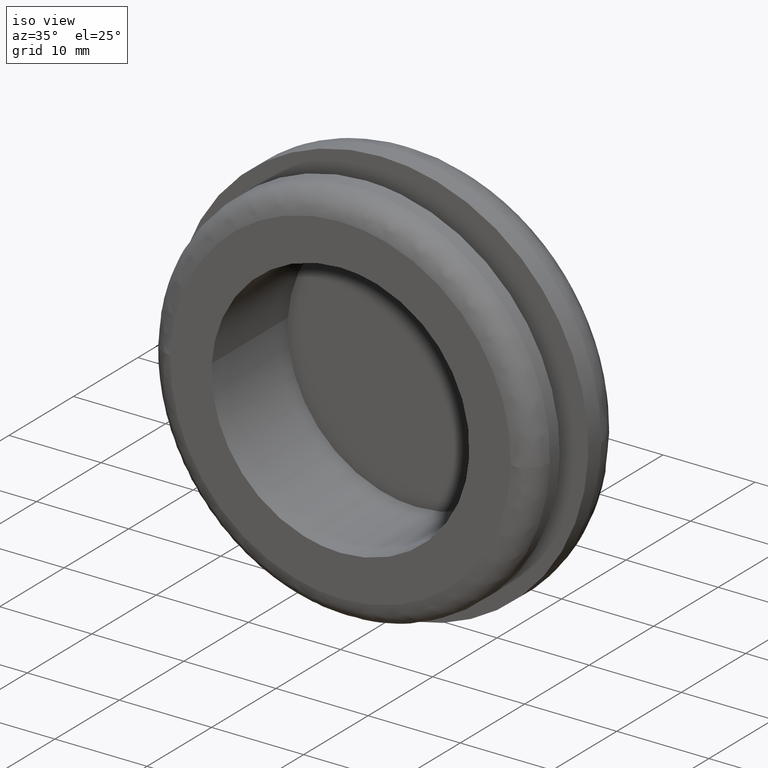
[diagram: clean part render]
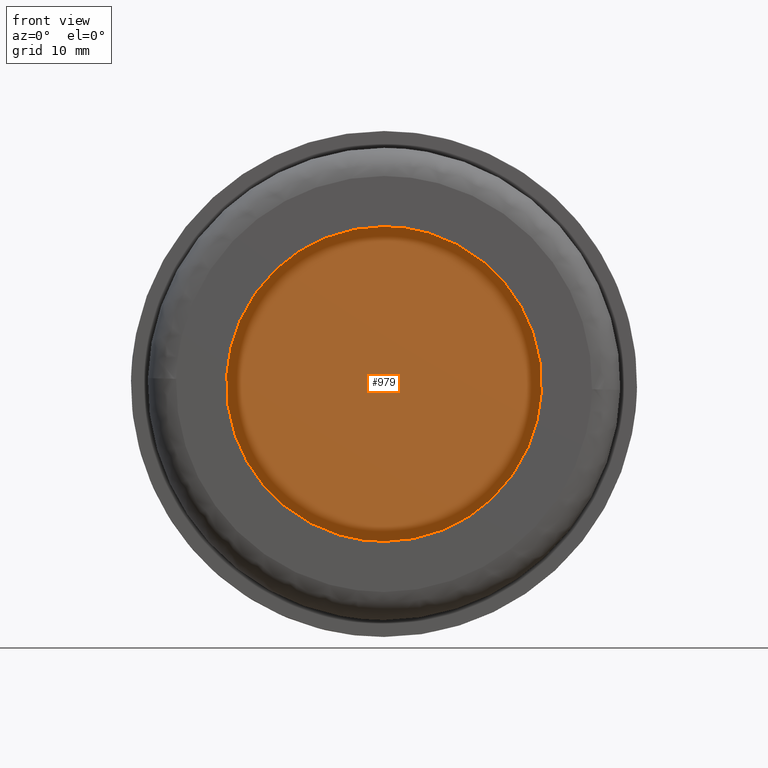
[diagram: tour spotlight — one face highlighted and labeled with its STEP entity id]
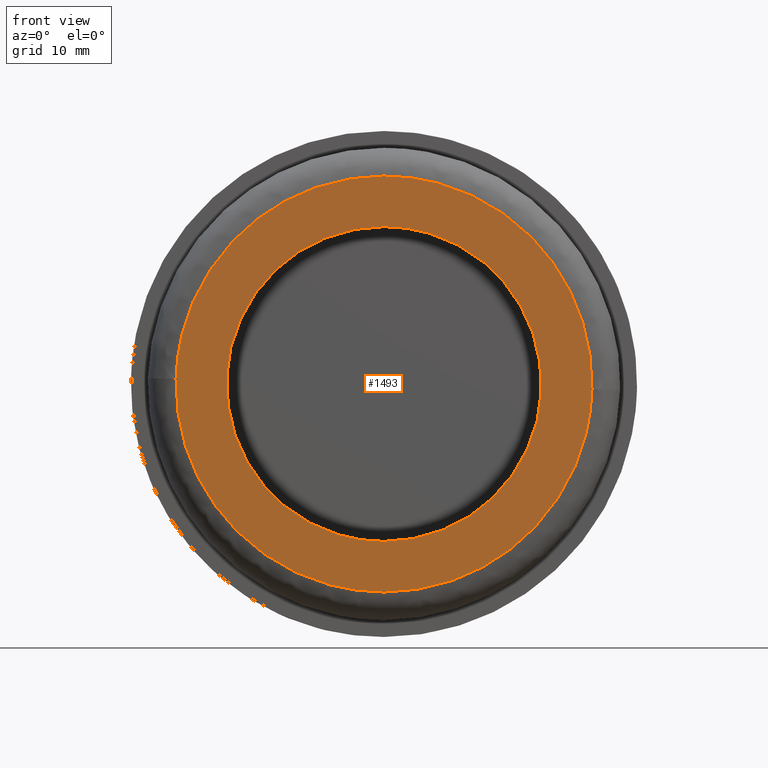
[diagram: tour spotlight — one face highlighted and labeled with its STEP entity id]
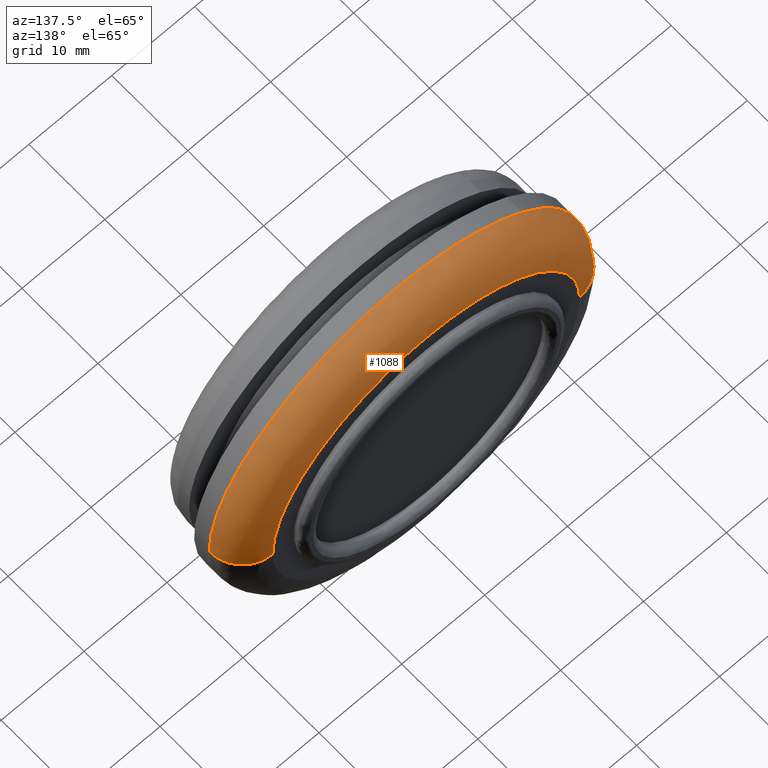
[diagram: tour spotlight — one face highlighted and labeled with its STEP entity id]
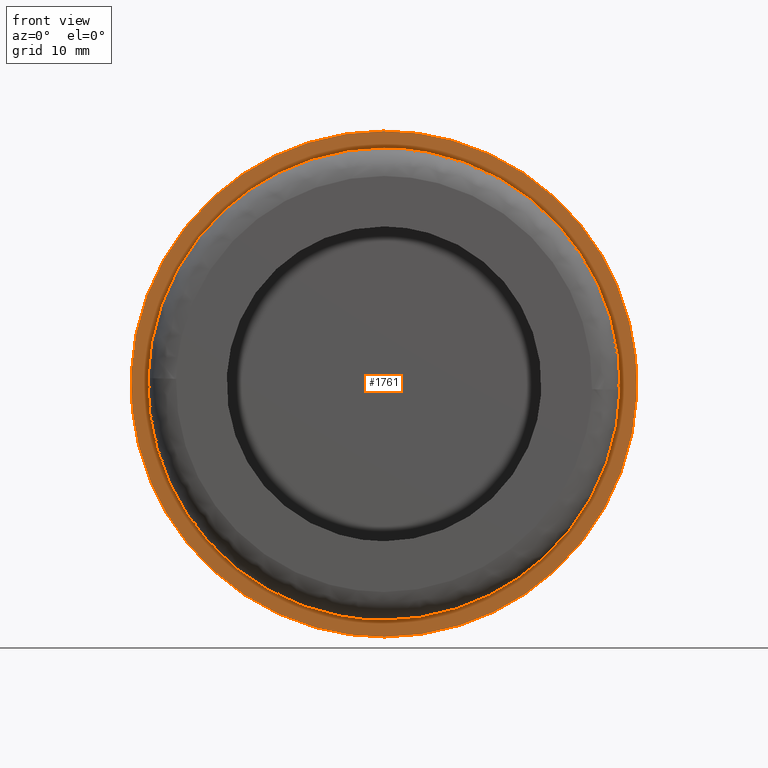
[diagram: tour spotlight — one face highlighted and labeled with its STEP entity id]
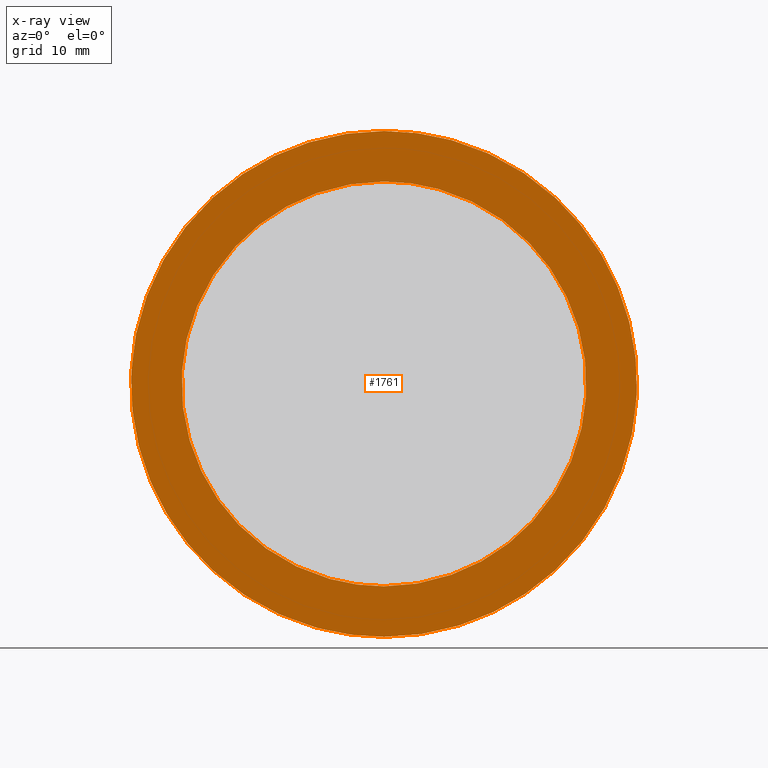
[diagram: x-ray of the same camera — body ghosted, this tour face saturated]
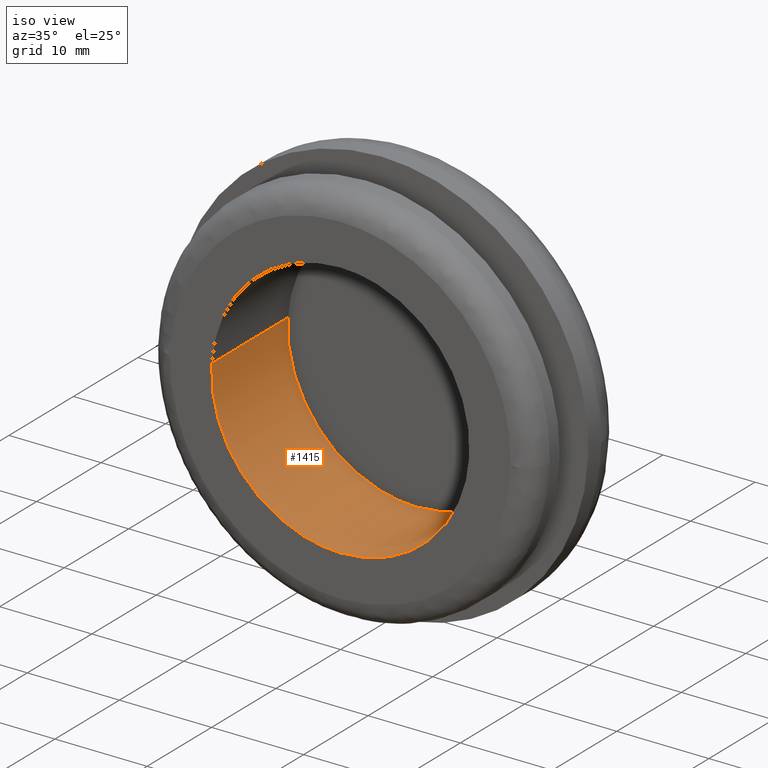
[diagram: tour spotlight — one face highlighted and labeled with its STEP entity id]
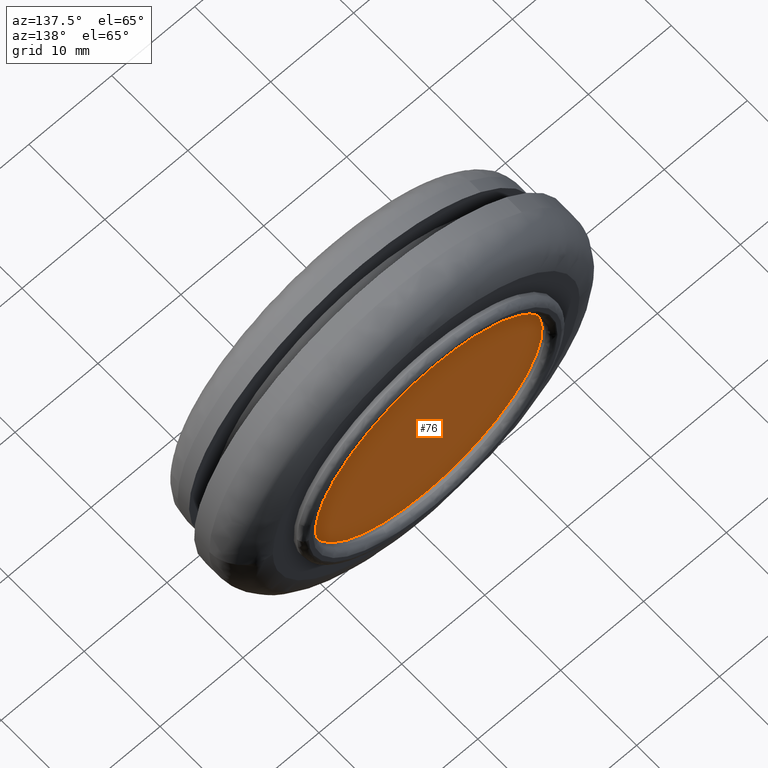
[diagram: tour spotlight — one face highlighted and labeled with its STEP entity id]
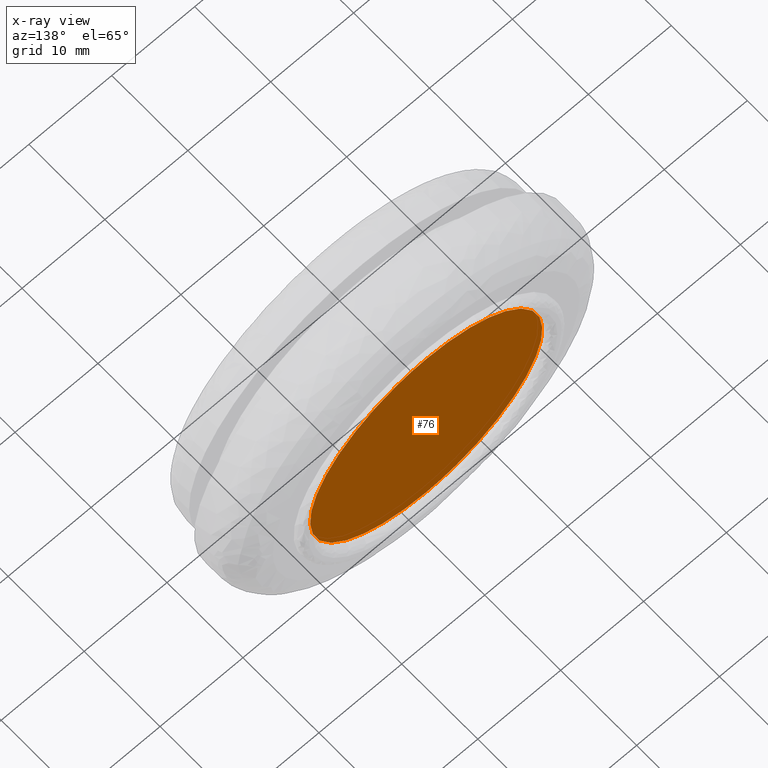
[diagram: x-ray of the same camera — body ghosted, this tour face saturated]
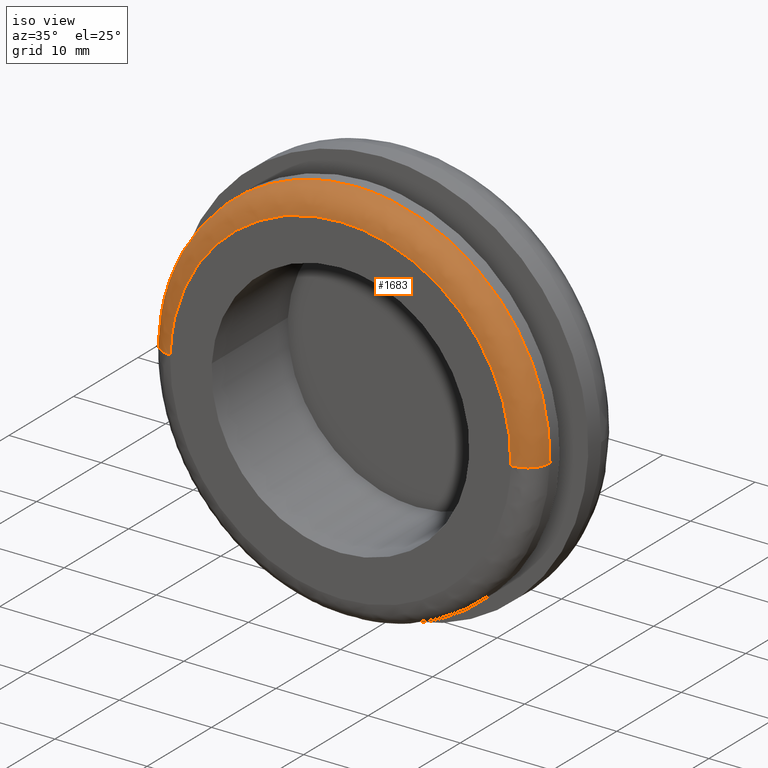
[diagram: tour spotlight — one face highlighted and labeled with its STEP entity id]
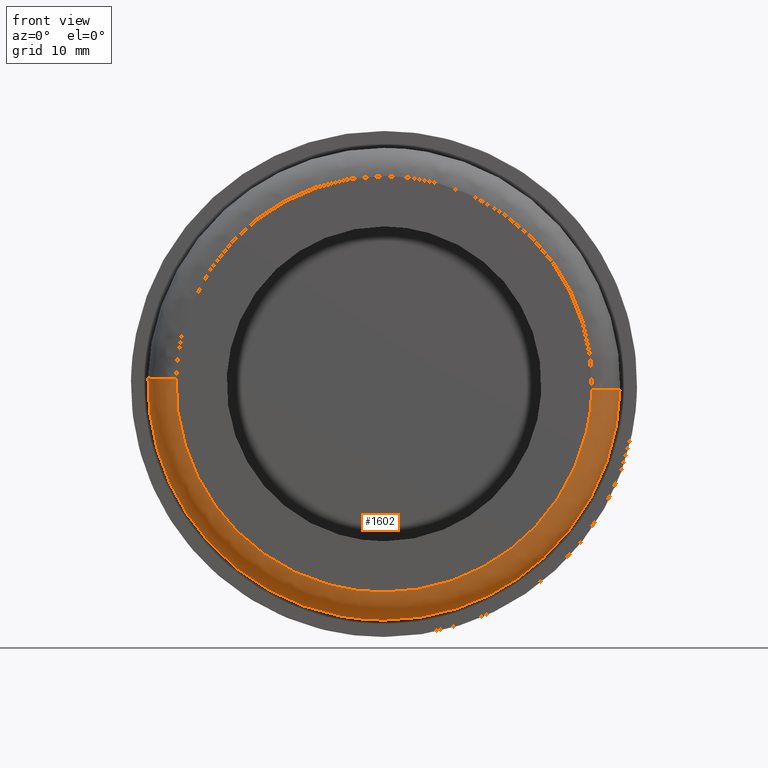
[diagram: tour spotlight — one face highlighted and labeled with its STEP entity id]
A machine part: a face-by-face anatomy tour. The part has 27 B-rep faces; the first image is the clean iso view, then the 8 largest visible faces are spotlighted one at a time (largest first), each with its STEP entity span.

Face 1 — front view, entity #979. In plain terms, the highlighted face is a freeform B-spline surface patch.
Definition (entity closure, byte-faithful):
#908=CARTESIAN_POINT('',(-15.398255422328701,11.800000000000001,-15.398599945730570));
#909=CARTESIAN_POINT('',(-15.398255422328701,11.800000000000001,15.398600696749090));
#910=CARTESIAN_POINT('',(15.398254921649690,11.800000000000001,-15.398599945730570));
#911=CARTESIAN_POINT('',(15.398254921649690,11.800000000000001,15.398600696749090));
#912=B_SPLINE_SURFACE_WITH_KNOTS('',1,1,((#908,#910),(#909,#911)),.UNSPECIFIED.,.F.,.F.,.U.,(2,2),(2,2),(0.0,30.797200642479659),(0.0,30.796510343978390),.UNSPECIFIED.);
#913=CARTESIAN_POINT('',(0.0,11.800000000000001,-14.0));
#914=VERTEX_POINT('',#913);
#915=CARTESIAN_POINT('',(13.973887551259940,11.799999999999971,-0.854673449163564));
#916=VERTEX_POINT('',#915);
#917=CARTESIAN_POINT('',(0.0,11.800000000000001,-14.0));
#918=CARTESIAN_POINT('',(13.169890700536572,11.799999999999988,-13.999999999999956));
#919=CARTESIAN_POINT('',(13.973887551259933,11.799999999999971,-0.854673449163564));
#927=(BOUNDED_CURVE()B_SPLINE_CURVE(2,(#917,#918,#919),.UNSPECIFIED.,.F.,.U.)B_SPLINE_CURVE_WITH_KNOTS((3,3),(0.0,0.239333037616961),.UNSPECIFIED.)CURVE()GEOMETRIC_REPRESENTATION_ITEM()RATIONAL_B_SPLINE_CURVE((1.0,0.719603904975869,0.976072203216213))REPRESENTATION_ITEM(''));
#928=EDGE_CURVE('',#914,#916,#927,.T.);
#929=ORIENTED_EDGE('',*,*,#928,.T.);
#930=CARTESIAN_POINT('',(0.0,11.800000000000001,14.0));
#931=VERTEX_POINT('',#930);
#932=CARTESIAN_POINT('',(13.973887551259933,11.799999999999971,-0.854673449163564));
#933=CARTESIAN_POINT('',(13.999999999998680,11.799999999999971,-0.427735625460084));
#934=CARTESIAN_POINT('',(13.999999999998700,11.799999999999971,7.984560E-014));
#935=CARTESIAN_POINT('',(13.999999999999371,11.799999999999985,14.000000000000037));
#936=CARTESIAN_POINT('',(0.0,11.800000000000001,14.0));
#944=(BOUNDED_CURVE()B_SPLINE_CURVE(2,(#932,#933,#934,#935,#936),.UNSPECIFIED.,.F.,.U.)B_SPLINE_CURVE_WITH_KNOTS((3,2,3),(0.239333037616961,0.250000000000000,0.500000000000000),.UNSPECIFIED.)CURVE()GEOMETRIC_REPRESENTATION_ITEM()RATIONAL_B_SPLINE_CURVE((0.976072203216213,0.987502876210679,1.0,0.707106781186547,1.0))REPRESENTATION_ITEM(''));
#945=EDGE_CURVE('',#916,#931,#944,.T.);
#946=ORIENTED_EDGE('',*,*,#945,.T.);
#947=CARTESIAN_POINT('',(-13.973887551259940,11.799999999999979,0.854673449163564));
#948=VERTEX_POINT('',#947);
#949=CARTESIAN_POINT('',(0.0,11.800000000000001,14.0));
#950=CARTESIAN_POINT('',(-13.169890700536572,11.799999999999990,13.999999999999956));
#951=CARTESIAN_POINT('',(-13.973887551259933,11.799999999999981,0.854673449163564));
#959=(BOUNDED_CURVE()B_SPLINE_CURVE(2,(#949,#950,#951),.UNSPECIFIED.,.F.,.U.)B_SPLINE_CURVE_WITH_KNOTS((3,3),(0.500000000000000,0.739333037616961),.UNSPECIFIED.)CURVE()GEOMETRIC_REPRESENTATION_ITEM()RATIONAL_B_SPLINE_CURVE((1.0,0.719603904975869,0.976072203216213))REPRESENTATION_ITEM(''));
#960=EDGE_CURVE('',#931,#948,#959,.T.);
#961=ORIENTED_EDGE('',*,*,#960,.T.);
#962=CARTESIAN_POINT('',(-13.973887551259933,11.799999999999981,0.854673449163564));
#963=CARTESIAN_POINT('',(-13.999999999998680,11.799999999999979,0.427735625460083));
#964=CARTESIAN_POINT('',(-13.999999999998700,11.799999999999979,-8.002698E-014));
#965=CARTESIAN_POINT('',(-13.999999999999371,11.799999999999988,-14.000000000000037));
#966=CARTESIAN_POINT('',(0.0,11.800000000000001,-14.0));
#974=(BOUNDED_CURVE()B_SPLINE_CURVE(2,(#962,#963,#964,#965,#966),.UNSPECIFIED.,.F.,.U.)B_SPLINE_CURVE_WITH_KNOTS((3,2,3),(0.739333037616961,0.750000000000000,1.0),.UNSPECIFIED.)CURVE()GEOMETRIC_REPRESENTATION_ITEM()RATIONAL_B_SPLINE_CURVE((0.976072203216213,0.987502876210679,1.0,0.707106781186547,1.0))REPRESENTATION_ITEM(''));
#975=EDGE_CURVE('',#948,#914,#974,.T.);
#976=ORIENTED_EDGE('',*,*,#975,.T.);
#977=EDGE_LOOP('',(#929,#946,#961,#976));
#978=FACE_OUTER_BOUND('',#977,.T.);
#979=ADVANCED_FACE('',(#978),#912,.F.);

Face 2 — front view, entity #1493. In plain terms, the highlighted face is a freeform B-spline surface patch.
Definition (entity closure, byte-faithful):
#1313=CARTESIAN_POINT('',(13.973887546767070,-3.228727E-015,-0.854673522622378));
#1314=VERTEX_POINT('',#1313);
#1320=CARTESIAN_POINT('',(0.0,-2.571673E-015,14.0));
#1321=VERTEX_POINT('',#1320);
#1322=CARTESIAN_POINT('',(13.973887546767067,-3.228727E-015,-0.854673522622378));
#1323=CARTESIAN_POINT('',(13.999999999998714,-3.219285E-015,-0.427735662292477));
#1324=CARTESIAN_POINT('',(13.999999999998741,-3.209247E-015,7.639821E-014));
#1325=CARTESIAN_POINT('',(13.999999999999385,-2.880721E-015,14.000000000000037));
#1326=CARTESIAN_POINT('',(0.0,-2.571673E-015,14.0));
#1334=(BOUNDED_CURVE()B_SPLINE_CURVE(2,(#1322,#1323,#1324,#1325,#1326),.UNSPECIFIED.,.F.,.U.)B_SPLINE_CURVE_WITH_KNOTS((3,2,3),(0.239333036709906,0.250000000000000,0.500000000000000),.UNSPECIFIED.)CURVE()GEOMETRIC_REPRESENTATION_ITEM()RATIONAL_B_SPLINE_CURVE((0.976072201272220,0.987502875147998,1.0,0.707106781186547,1.0))REPRESENTATION_ITEM(''));
#1335=EDGE_CURVE('',#1314,#1321,#1334,.T.);
#1337=CARTESIAN_POINT('',(-13.973887546767070,-2.479326E-015,0.854673522622380));
#1338=VERTEX_POINT('',#1337);
#1339=CARTESIAN_POINT('',(0.0,-2.571673E-015,14.0));
#1340=CARTESIAN_POINT('',(-13.169890631174907,-2.525500E-015,13.999999999999964));
#1341=CARTESIAN_POINT('',(-13.973887546767068,-2.479326E-015,0.854673522622380));
#1349=(BOUNDED_CURVE()B_SPLINE_CURVE(2,(#1339,#1340,#1341),.UNSPECIFIED.,.F.,.U.)B_SPLINE_CURVE_WITH_KNOTS((3,3),(0.500000000000000,0.739333036709906),.UNSPECIFIED.)CURVE()GEOMETRIC_REPRESENTATION_ITEM()RATIONAL_B_SPLINE_CURVE((1.0,0.719603906038550,0.976072201272220))REPRESENTATION_ITEM(''));
#1350=EDGE_CURVE('',#1321,#1338,#1349,.T.);
#1382=CARTESIAN_POINT('',(0.0,-2.571673E-015,-14.0));
#1383=VERTEX_POINT('',#1382);
#1384=CARTESIAN_POINT('',(-13.973887546767068,-2.479326E-015,0.854673522622380));
#1385=CARTESIAN_POINT('',(-13.999999999998716,-2.480653E-015,0.427735662292477));
#1386=CARTESIAN_POINT('',(-13.999999999998741,-2.482064E-015,-7.679506E-014));
#1387=CARTESIAN_POINT('',(-13.999999999999385,-2.528238E-015,-14.000000000000037));
#1388=CARTESIAN_POINT('',(0.0,-2.571673E-015,-14.0));
#1396=(BOUNDED_CURVE()B_SPLINE_CURVE(2,(#1384,#1385,#1386,#1387,#1388),.UNSPECIFIED.,.F.,.U.)B_SPLINE_CURVE_WITH_KNOTS((3,2,3),(0.739333036709906,0.750000000000000,1.0),.UNSPECIFIED.)CURVE()GEOMETRIC_REPRESENTATION_ITEM()RATIONAL_B_SPLINE_CURVE((0.976072201272220,0.987502875147998,1.0,0.707106781186547,1.0))REPRESENTATION_ITEM(''));
#1397=EDGE_CURVE('',#1338,#1383,#1396,.T.);
#1399=CARTESIAN_POINT('',(0.0,-2.571673E-015,-14.0));
#1400=CARTESIAN_POINT('',(13.169890631174908,-2.900200E-015,-13.999999999999966));
#1401=CARTESIAN_POINT('',(13.973887546767067,-3.228727E-015,-0.854673522622378));
#1409=(BOUNDED_CURVE()B_SPLINE_CURVE(2,(#1399,#1400,#1401),.UNSPECIFIED.,.F.,.U.)B_SPLINE_CURVE_WITH_KNOTS((3,3),(0.0,0.239333036709906),.UNSPECIFIED.)CURVE()GEOMETRIC_REPRESENTATION_ITEM()RATIONAL_B_SPLINE_CURVE((1.0,0.719603906038550,0.976072201272220))REPRESENTATION_ITEM(''));
#1410=EDGE_CURVE('',#1383,#1314,#1409,.T.);
#1416=CARTESIAN_POINT('',(-20.341723765920751,-3.062194E-015,-20.348149928286819));
#1417=CARTESIAN_POINT('',(-20.341723765920751,-3.062194E-015,20.348150920704150));
#1418=CARTESIAN_POINT('',(20.341724758024672,-3.062194E-015,-20.348149928286819));
#1419=CARTESIAN_POINT('',(20.341724758024672,-3.062194E-015,20.348150920704150));
#1420=B_SPLINE_SURFACE_WITH_KNOTS('',1,1,((#1416,#1418),(#1417,#1419)),.UNSPECIFIED.,.F.,.F.,.U.,(2,2),(2,2),(0.0,40.696300848990973),(0.0,40.683448523945422),.UNSPECIFIED.);
#1421=CARTESIAN_POINT('',(0.0,0.0,-18.500000000000000));
#1422=VERTEX_POINT('',#1421);
#1423=CARTESIAN_POINT('',(18.494157503055991,-1.339020E-015,-0.464906765829801));
#1424=VERTEX_POINT('',#1423);
#1425=CARTESIAN_POINT('',(0.0,0.0,-18.500000000000000));
#1426=CARTESIAN_POINT('',(18.040790709908023,-6.695102E-016,-18.500000000016566));
#1427=CARTESIAN_POINT('',(18.494157503055987,-1.339020E-015,-0.464906765829801));
#1435=(BOUNDED_CURVE()B_SPLINE_CURVE(2,(#1425,#1426,#1427),.UNSPECIFIED.,.F.,.U.)B_SPLINE_CURVE_WITH_KNOTS((3,3),(0.0,0.245579891768909),.UNSPECIFIED.)CURVE()GEOMETRIC_REPRESENTATION_ITEM()RATIONAL_B_SPLINE_CURVE((1.0,0.712285260095780,0.989826157679546))REPRESENTATION_ITEM(''));
#1436=EDGE_CURVE('',#1422,#1424,#1435,.T.);
#1437=ORIENTED_EDGE('',*,*,#1436,.T.);
#1438=CARTESIAN_POINT('',(0.0,-3.552714E-015,18.500000000000000));
#1439=VERTEX_POINT('',#1438);
#1440=CARTESIAN_POINT('',(18.494157503055987,-1.339020E-015,-0.464906765829801));
#1441=CARTESIAN_POINT('',(18.500000001309250,-1.352585E-015,-0.232490094362929));
#1442=CARTESIAN_POINT('',(18.500000001300979,-1.366495E-015,-3.270482E-011));
#1443=CARTESIAN_POINT('',(18.500000000642309,-2.473341E-015,18.499999999983849));
#1444=CARTESIAN_POINT('',(0.0,-3.552714E-015,18.500000000000000));
#1452=(BOUNDED_CURVE()B_SPLINE_CURVE(2,(#1440,#1441,#1442,#1443,#1444),.UNSPECIFIED.,.F.,.U.)B_SPLINE_CURVE_WITH_KNOTS((3,2,3),(0.245579891768909,0.250000000000000,0.500000000000000),.UNSPECIFIED.)CURVE()GEOMETRIC_REPRESENTATION_ITEM()RATIONAL_B_SPLINE_CURVE((0.989826157679546,0.994821521090768,1.0,0.707106781186548,1.0))REPRESENTATION_ITEM(''));
#1453=EDGE_CURVE('',#1424,#1439,#1452,.T.);
#1454=ORIENTED_EDGE('',*,*,#1453,.T.);
#1455=CARTESIAN_POINT('',(-18.494157503055991,-1.307782E-015,0.464906765829808));
#1456=VERTEX_POINT('',#1455);
#1457=CARTESIAN_POINT('',(0.0,-3.552714E-015,18.500000000000000));
#1458=CARTESIAN_POINT('',(-18.040790709908016,-2.430248E-015,18.500000000016559));
#1459=CARTESIAN_POINT('',(-18.494157503055991,-1.307782E-015,0.464906765829808));
#1467=(BOUNDED_CURVE()B_SPLINE_CURVE(2,(#1457,#1458,#1459),.UNSPECIFIED.,.F.,.U.)B_SPLINE_CURVE_WITH_KNOTS((3,3),(0.500000000000000,0.745579891768909),.UNSPECIFIED.)CURVE()GEOMETRIC_REPRESENTATION_ITEM()RATIONAL_B_SPLINE_CURVE((1.0,0.712285260095780,0.989826157679546))REPRESENTATION_ITEM(''));
#1468=EDGE_CURVE('',#1439,#1456,#1467,.T.);
#1469=ORIENTED_EDGE('',*,*,#1468,.T.);
#1470=CARTESIAN_POINT('',(-18.494157503055991,-1.307782E-015,0.464906765829808));
#1471=CARTESIAN_POINT('',(-18.500000001309253,-1.299768E-015,0.232490094362929));
#1472=CARTESIAN_POINT('',(-18.500000001300979,-1.291551E-015,3.269949E-011));
#1473=CARTESIAN_POINT('',(-18.500000000642309,-6.376600E-016,-18.499999999983849));
#1474=CARTESIAN_POINT('',(0.0,0.0,-18.500000000000000));
#1482=(BOUNDED_CURVE()B_SPLINE_CURVE(2,(#1470,#1471,#1472,#1473,#1474),.UNSPECIFIED.,.F.,.U.)B_SPLINE_CURVE_WITH_KNOTS((3,2,3),(0.745579891768909,0.750000000000000,1.0),.UNSPECIFIED.)CURVE()GEOMETRIC_REPRESENTATION_ITEM()RATIONAL_B_SPLINE_CURVE((0.989826157679546,0.994821521090768,1.0,0.707106781186548,1.0))REPRESENTATION_ITEM(''));
#1483=EDGE_CURVE('',#1456,#1422,#1482,.T.);
#1484=ORIENTED_EDGE('',*,*,#1483,.T.);
#1485=EDGE_LOOP('',(#1437,#1454,#1469,#1484));
#1486=FACE_OUTER_BOUND('',#1485,.T.);
#1487=ORIENTED_EDGE('',*,*,#1350,.F.);
#1488=ORIENTED_EDGE('',*,*,#1335,.F.);
#1489=ORIENTED_EDGE('',*,*,#1410,.F.);
#1490=ORIENTED_EDGE('',*,*,#1397,.F.);
#1491=EDGE_LOOP('',(#1487,#1488,#1489,#1490));
#1492=FACE_BOUND('',#1491,.T.);
#1493=ADVANCED_FACE('',(#1486,#1492),#1420,.F.);

Face 3 — auxiliary view, entity #1088. In plain terms, the highlighted face is a freeform B-spline surface patch.
Definition (entity closure, byte-faithful):
#835=CARTESIAN_POINT('',(-18.498539318125371,12.300000000000001,0.232471737890504));
#836=VERTEX_POINT('',#835);
#854=CARTESIAN_POINT('',(0.0,12.300000000000001,18.500000000000000));
#855=VERTEX_POINT('',#854);
#856=CARTESIAN_POINT('',(0.0,12.300000000000001,18.500000000000000));
#857=CARTESIAN_POINT('',(-18.268970703419505,12.300000000000002,18.500000000002238));
#858=CARTESIAN_POINT('',(-18.498539318125367,12.299999999999997,0.232471737890504));
#866=(BOUNDED_CURVE()B_SPLINE_CURVE(2,(#856,#857,#858),.UNSPECIFIED.,.F.,.U.)B_SPLINE_CURVE_WITH_KNOTS((3,3),(0.500000000000000,0.747784295921310),.UNSPECIFIED.)CURVE()GEOMETRIC_REPRESENTATION_ITEM()RATIONAL_B_SPLINE_CURVE((1.0,0.709702639984730,0.994854295643049))REPRESENTATION_ITEM(''));
#867=EDGE_CURVE('',#855,#836,#866,.T.);
#869=CARTESIAN_POINT('',(18.498539318125371,12.300000000000001,-0.232471737890505));
#870=VERTEX_POINT('',#869);
#871=CARTESIAN_POINT('',(18.498539318125367,12.299999999999997,-0.232471737890505));
#872=CARTESIAN_POINT('',(18.500000000354220,12.299999999999997,-0.116240457876423));
#873=CARTESIAN_POINT('',(18.500000000353101,12.300000000000001,-4.437080E-012));
#874=CARTESIAN_POINT('',(18.500000000175447,12.300000000000002,18.499999999997794));
#875=CARTESIAN_POINT('',(0.0,12.300000000000001,18.500000000000000));
#883=(BOUNDED_CURVE()B_SPLINE_CURVE(2,(#871,#872,#873,#874,#875),.UNSPECIFIED.,.F.,.U.)B_SPLINE_CURVE_WITH_KNOTS((3,2,3),(0.247784295921310,0.250000000000000,0.500000000000000),.UNSPECIFIED.)CURVE()GEOMETRIC_REPRESENTATION_ITEM()RATIONAL_B_SPLINE_CURVE((0.994854295643049,0.997404141201817,1.0,0.707106781186548,1.0))REPRESENTATION_ITEM(''));
#884=EDGE_CURVE('',#870,#855,#883,.T.);
#980=CARTESIAN_POINT('',(18.214011368537797,12.290317459431787,-0.738359933481083));
#981=CARTESIAN_POINT('',(18.217193447251759,12.290317459431785,-0.485151484364187));
#982=CARTESIAN_POINT('',(18.449389319384181,12.290317459431789,17.991436293307039));
#983=CARTESIAN_POINT('',(0.228976513038572,12.290317459431785,18.220412806345610));
#984=CARTESIAN_POINT('',(-17.991436293307039,12.290317459431789,18.449389319384196));
#985=CARTESIAN_POINT('',(-18.223632241045390,12.290317459431789,-0.027204474498076));
#986=CARTESIAN_POINT('',(-18.226814393619271,12.290317459431781,-0.280418800891566));
#987=CARTESIAN_POINT('',(22.800336346973001,12.610148754442383,-0.924280461226526));
#988=CARTESIAN_POINT('',(22.804319679556514,12.610148754442381,-0.607313611423572));
#989=CARTESIAN_POINT('',(23.094982942902398,12.610148754442386,22.521716416687902));
#990=CARTESIAN_POINT('',(0.286633263107248,12.610148754442385,22.808349679795143));
#991=CARTESIAN_POINT('',(-22.521716416687894,12.610148754442386,23.094982942902398));
#992=CARTESIAN_POINT('',(-22.812379774677417,12.610148754442385,-0.034054616314241));
#993=CARTESIAN_POINT('',(-22.816363199718943,12.610148754442381,-0.351028823303948));
#994=CARTESIAN_POINT('',(22.480640621091386,8.021849750576031,-0.911320629912053));
#995=CARTESIAN_POINT('',(22.484568101235606,8.021849750576031,-0.598798142051226));
#996=CARTESIAN_POINT('',(22.771155819311080,8.021849750576031,22.205927370054432));
#997=CARTESIAN_POINT('',(0.282614224628324,8.021849750576031,22.488541594682758));
#998=CARTESIAN_POINT('',(-22.205927370054432,8.021849750576031,22.771155819311080));
#999=CARTESIAN_POINT('',(-22.492515181446496,8.021849750576031,-0.033577118302084));
#1000=CARTESIAN_POINT('',(-22.496442752752323,8.021849750576031,-0.346106860190609));
#1008=(BOUNDED_SURFACE()B_SPLINE_SURFACE(2,2,((#980,#987,#994),(#981,#988,#995),(#982,#989,#996),(#983,#990,#997),(#984,#991,#998),(#985,#992,#999),(#986,#993,#1000)),.UNSPECIFIED.,.F.,.F.,.U.)B_SPLINE_SURFACE_WITH_KNOTS((3,1,2,1,3),(3,3),(0.0,0.745263733110999,38.008441583022751,75.271619432934514,76.016900770923883),(0.0,7.290922142346218),.UNSPECIFIED.)GEOMETRIC_REPRESENTATION_ITEM()RATIONAL_B_SPLINE_SURFACE(((0.927077722016141,0.608371452427157,0.927077910063591),(0.921709912980504,0.604848962670570,0.921710099939153),(0.647951715586163,0.425202026704466,0.647951847015993),(0.916342103944867,0.601326472913982,0.916342289814715),(0.647951715586163,0.425202026704466,0.647951847015993),(0.921710039780751,0.604849045880045,0.921710226739425),(0.927077975616635,0.608371618846107,0.927078163664135)))REPRESENTATION_ITEM('')SURFACE());
#1009=CARTESIAN_POINT('',(22.498223683483239,8.299998324835478,-0.282720865335666));
#1010=VERTEX_POINT('',#1009);
#1011=CARTESIAN_POINT('',(0.0,8.300000000000001,22.500000000000000));
#1012=VERTEX_POINT('',#1011);
#1013=CARTESIAN_POINT('',(22.498223683483236,8.299998324835478,-0.282720865335666));
#1014=CARTESIAN_POINT('',(22.499999999994287,8.299998330032238,-0.141366012907417));
#1015=CARTESIAN_POINT('',(22.499999999994309,8.299998335294713,6.958734E-014));
#1016=CARTESIAN_POINT('',(22.499999999997172,8.299999172876975,22.500000000000028));
#1017=CARTESIAN_POINT('',(0.0,8.300000000000001,22.500000000000000));
#1025=(BOUNDED_CURVE()B_SPLINE_CURVE(2,(#1013,#1014,#1015,#1016,#1017),.UNSPECIFIED.,.F.,.U.)B_SPLINE_CURVE_WITH_KNOTS((3,2,3),(0.247784413426157,0.250000000000000,0.500000000000000),.UNSPECIFIED.)CURVE()GEOMETRIC_REPRESENTATION_ITEM()RATIONAL_B_SPLINE_CURVE((0.994854566093746,0.997404278867309,1.0,0.707106781186548,1.0))REPRESENTATION_ITEM(''));
#1026=EDGE_CURVE('',#1010,#1012,#1025,.T.);
#1027=ORIENTED_EDGE('',*,*,#1026,.F.);
#1028=CARTESIAN_POINT('',(18.498539318125363,12.299999999999997,-0.232471737890505));
#1029=CARTESIAN_POINT('',(22.498225264067052,12.299999999644646,-0.282728402427748));
#1030=CARTESIAN_POINT('',(22.498223683483239,8.299998324835478,-0.282720865335666));
#1038=(BOUNDED_CURVE()B_SPLINE_CURVE(2,(#1028,#1029,#1030),.UNSPECIFIED.,.F.,.U.)B_SPLINE_CURVE_WITH_KNOTS((3,3),(-1.734750791566090,-0.265248773177986),.UNSPECIFIED.)CURVE()GEOMETRIC_REPRESENTATION_ITEM()RATIONAL_B_SPLINE_CURVE((0.889029723543727,0.628638869124121,0.889029877795568))REPRESENTATION_ITEM(''));
#1039=EDGE_CURVE('',#870,#1010,#1038,.T.);
#1040=ORIENTED_EDGE('',*,*,#1039,.F.);
#1041=ORIENTED_EDGE('',*,*,#884,.T.);
#1042=ORIENTED_EDGE('',*,*,#867,.T.);
#1043=CARTESIAN_POINT('',(-22.498223683483239,8.299998324835482,0.282720865335665));
#1044=VERTEX_POINT('',#1043);
#1045=CARTESIAN_POINT('',(-18.498539318125363,12.299999999999997,0.232471737890504));
#1046=CARTESIAN_POINT('',(-22.498225264067052,12.299999999644648,0.282728402427746));
#1047=CARTESIAN_POINT('',(-22.498223683483232,8.299998324835482,0.282720865335665));
#1055=(BOUNDED_CURVE()B_SPLINE_CURVE(2,(#1045,#1046,#1047),.UNSPECIFIED.,.F.,.U.)B_SPLINE_CURVE_WITH_KNOTS((3,3),(-1.734750791566090,-0.265248773177987),.UNSPECIFIED.)CURVE()GEOMETRIC_REPRESENTATION_ITEM()RATIONAL_B_SPLINE_CURVE((0.889029723543727,0.628638869124121,0.889029877795567))REPRESENTATION_ITEM(''));
#1056=EDGE_CURVE('',#836,#1044,#1055,.T.);
#1057=ORIENTED_EDGE('',*,*,#1056,.T.);
#1058=CARTESIAN_POINT('',(-15.200778717512890,8.299999206930192,16.588740952259268));
#1059=VERTEX_POINT('',#1058);
#1060=CARTESIAN_POINT('',(-15.200778717512890,8.299999206930192,16.588740952259268));
#1061=CARTESIAN_POINT('',(-22.375937898303533,8.299998691697587,10.013919675341814));
#1062=CARTESIAN_POINT('',(-22.498223683483236,8.299998324835482,0.282720865335665));
#1070=(BOUNDED_CURVE()B_SPLINE_CURVE(2,(#1060,#1061,#1062),.UNSPECIFIED.,.F.,.U.)B_SPLINE_CURVE_WITH_KNOTS((3,3),(0.618415200403999,0.747784413426157),.UNSPECIFIED.)CURVE()GEOMETRIC_REPRESENTATION_ITEM()RATIONAL_B_SPLINE_CURVE((0.853959781909363,0.845975556425344,0.994854566093746))REPRESENTATION_ITEM(''));
#1071=EDGE_CURVE('',#1059,#1044,#1070,.T.);
#1072=ORIENTED_EDGE('',*,*,#1071,.F.);
#1073=CARTESIAN_POINT('',(0.0,8.300000000000001,22.500000000000000));
#1074=CARTESIAN_POINT('',(-8.749770722003584,8.299999670163221,22.500000000000309));
#1075=CARTESIAN_POINT('',(-15.200778717512890,8.299999206930192,16.588740952259268));
#1083=(BOUNDED_CURVE()B_SPLINE_CURVE(2,(#1073,#1074,#1075),.UNSPECIFIED.,.F.,.U.)B_SPLINE_CURVE_WITH_KNOTS((3,3),(0.500000000000000,0.618415200403999),.UNSPECIFIED.)CURVE()GEOMETRIC_REPRESENTATION_ITEM()RATIONAL_B_SPLINE_CURVE((1.0,0.861267963188930,0.853959781909363))REPRESENTATION_ITEM(''));
#1084=EDGE_CURVE('',#1012,#1059,#1083,.T.);
#1085=ORIENTED_EDGE('',*,*,#1084,.F.);
#1086=EDGE_LOOP('',(#1027,#1040,#1041,#1042,#1057,#1072,#1085));
#1087=FACE_OUTER_BOUND('',#1086,.T.);
#1088=ADVANCED_FACE('',(#1087),#1008,.T.);

Face 4 — front view, entity #1761. An x-ray twin of the same camera follows (body ghosted, this face saturated) — the face is partly hidden behind the body. In plain terms, the highlighted face is a freeform B-spline surface patch.
Definition (entity closure, byte-faithful):
#1191=CARTESIAN_POINT('',(-15.200778753803370,6.299999999999891,16.588740919006430));
#1192=VERTEX_POINT('',#1191);
#1198=CARTESIAN_POINT('',(0.0,6.299999999999890,22.500000000000000));
#1199=VERTEX_POINT('',#1198);
#1200=CARTESIAN_POINT('',(0.0,6.299999999999890,22.500000000000000));
#1201=CARTESIAN_POINT('',(-8.749770750335784,6.299999999999891,22.500000000000004));
#1202=CARTESIAN_POINT('',(-15.200778753803386,6.299999999999891,16.588740919006462));
#1210=(BOUNDED_CURVE()B_SPLINE_CURVE(2,(#1200,#1201,#1202),.UNSPECIFIED.,.F.,.U.)B_SPLINE_CURVE_WITH_KNOTS((3,3),(0.500000000000000,0.618415200734230),.UNSPECIFIED.)CURVE()GEOMETRIC_REPRESENTATION_ITEM()RATIONAL_B_SPLINE_CURVE((1.0,0.861267962802042,0.853959781868602))REPRESENTATION_ITEM(''));
#1211=EDGE_CURVE('',#1199,#1192,#1210,.T.);
#1213=CARTESIAN_POINT('',(15.200778753803370,6.299999999999890,-16.588740919006430));
#1214=VERTEX_POINT('',#1213);
#1215=CARTESIAN_POINT('',(15.200778753803398,6.299999999999891,-16.588740919006462));
#1216=CARTESIAN_POINT('',(22.499999999999996,6.299999999999890,-9.900237687795531));
#1217=CARTESIAN_POINT('',(22.500000000000000,6.299999999999890,-3.061516E-016));
#1218=CARTESIAN_POINT('',(22.500000000000000,6.299999999999891,22.500000000000000));
#1219=CARTESIAN_POINT('',(0.0,6.299999999999890,22.500000000000000));
#1227=(BOUNDED_CURVE()B_SPLINE_CURVE(2,(#1215,#1216,#1217,#1218,#1219),.UNSPECIFIED.,.F.,.U.)B_SPLINE_CURVE_WITH_KNOTS((3,2,3),(0.118415200734229,0.250000000000000,0.500000000000000),.UNSPECIFIED.)CURVE()GEOMETRIC_REPRESENTATION_ITEM()RATIONAL_B_SPLINE_CURVE((0.853959781868602,0.845838818384506,1.0,0.707106781186548,1.0))REPRESENTATION_ITEM(''));
#1228=EDGE_CURVE('',#1214,#1199,#1227,.T.);
#1258=CARTESIAN_POINT('',(0.0,6.299999999999890,-22.500000000000000));
#1259=VERTEX_POINT('',#1258);
#1260=CARTESIAN_POINT('',(0.0,6.299999999999890,-22.500000000000000));
#1261=CARTESIAN_POINT('',(8.749770750335786,6.299999999999891,-22.500000000000004));
#1262=CARTESIAN_POINT('',(15.200778753803398,6.299999999999891,-16.588740919006462));
#1270=(BOUNDED_CURVE()B_SPLINE_CURVE(2,(#1260,#1261,#1262),.UNSPECIFIED.,.F.,.U.)B_SPLINE_CURVE_WITH_KNOTS((3,3),(0.0,0.118415200734229),.UNSPECIFIED.)CURVE()GEOMETRIC_REPRESENTATION_ITEM()RATIONAL_B_SPLINE_CURVE((1.0,0.861267962802042,0.853959781868602))REPRESENTATION_ITEM(''));
#1271=EDGE_CURVE('',#1259,#1214,#1270,.T.);
#1273=CARTESIAN_POINT('',(-15.200778753803386,6.299999999999891,16.588740919006462));
#1274=CARTESIAN_POINT('',(-22.500000000000000,6.299999999999891,9.900237687795531));
#1275=CARTESIAN_POINT('',(-22.500000000000000,6.299999999999890,-3.061516E-016));
#1276=CARTESIAN_POINT('',(-22.500000000000000,6.299999999999891,-22.500000000000000));
#1277=CARTESIAN_POINT('',(0.0,6.299999999999890,-22.500000000000000));
#1285=(BOUNDED_CURVE()B_SPLINE_CURVE(2,(#1273,#1274,#1275,#1276,#1277),.UNSPECIFIED.,.F.,.U.)B_SPLINE_CURVE_WITH_KNOTS((3,2,3),(0.618415200734230,0.750000000000000,1.0),.UNSPECIFIED.)CURVE()GEOMETRIC_REPRESENTATION_ITEM()RATIONAL_B_SPLINE_CURVE((0.853959781868602,0.845838818384506,1.0,0.707106781186548,1.0))REPRESENTATION_ITEM(''));
#1286=EDGE_CURVE('',#1192,#1259,#1285,.T.);
#1684=CARTESIAN_POINT('',(-24.737280553393820,6.299999999999890,-24.747749912781270));
#1685=CARTESIAN_POINT('',(-24.737280553393820,6.299999999999890,24.747751119775330));
#1686=CARTESIAN_POINT('',(24.737279346399760,6.299999999999890,-24.747749912781270));
#1687=CARTESIAN_POINT('',(24.737279346399760,6.299999999999890,24.747751119775330));
#1688=B_SPLINE_SURFACE_WITH_KNOTS('',1,1,((#1684,#1686),(#1685,#1687)),.UNSPECIFIED.,.F.,.F.,.U.,(2,2),(2,2),(0.0,49.495501032556589),(0.0,49.474559899793583),.UNSPECIFIED.);
#1689=ORIENTED_EDGE('',*,*,#1271,.T.);
#1690=ORIENTED_EDGE('',*,*,#1228,.T.);
#1691=ORIENTED_EDGE('',*,*,#1211,.T.);
#1692=ORIENTED_EDGE('',*,*,#1286,.T.);
#1693=EDGE_LOOP('',(#1689,#1690,#1691,#1692));
#1694=FACE_OUTER_BOUND('',#1693,.T.);
#1695=CARTESIAN_POINT('',(0.0,6.299999999999890,18.0));
#1696=VERTEX_POINT('',#1695);
#1697=CARTESIAN_POINT('',(-17.966427061061420,6.299999999999890,1.098862438812192));
#1698=VERTEX_POINT('',#1697);
#1699=CARTESIAN_POINT('',(0.0,6.299999999999890,18.0));
#1700=CARTESIAN_POINT('',(-16.932719848378806,6.299999999999890,17.999999999999897));
#1701=CARTESIAN_POINT('',(-17.966427061061420,6.299999999999890,1.098862438812192));
#1709=(BOUNDED_CURVE()B_SPLINE_CURVE(2,(#1699,#1700,#1701),.UNSPECIFIED.,.F.,.U.)B_SPLINE_CURVE_WITH_KNOTS((3,3),(0.500000000000000,0.739333070504357),.UNSPECIFIED.)CURVE()GEOMETRIC_REPRESENTATION_ITEM()RATIONAL_B_SPLINE_CURVE((1.0,0.719603866445887,0.976072273700219))REPRESENTATION_ITEM(''));
#1710=EDGE_CURVE('',#1696,#1698,#1709,.T.);
#1711=ORIENTED_EDGE('',*,*,#1710,.F.);
#1712=CARTESIAN_POINT('',(17.966427061061420,6.299999999999890,-1.098862438812194));
#1713=VERTEX_POINT('',#1712);
#1714=CARTESIAN_POINT('',(17.966427061061420,6.299999999999890,-1.098862438812195));
#1715=CARTESIAN_POINT('',(17.999999999996504,6.299999999999890,-0.549944087163102));
#1716=CARTESIAN_POINT('',(17.999999999996561,6.299999999999890,2.134319E-013));
#1717=CARTESIAN_POINT('',(17.999999999998337,6.299999999999891,18.000000000000107));
#1718=CARTESIAN_POINT('',(0.0,6.299999999999890,18.0));
#1726=(BOUNDED_CURVE()B_SPLINE_CURVE(2,(#1714,#1715,#1716,#1717,#1718),.UNSPECIFIED.,.F.,.U.)B_SPLINE_CURVE_WITH_KNOTS((3,2,3),(0.239333070504357,0.250000000000000,0.500000000000000),.UNSPECIFIED.)CURVE()GEOMETRIC_REPRESENTATION_ITEM()RATIONAL_B_SPLINE_CURVE((0.976072273700219,0.987502914740660,1.0,0.707106781186547,1.0))REPRESENTATION_ITEM(''));
#1727=EDGE_CURVE('',#1713,#1696,#1726,.T.);
#1728=ORIENTED_EDGE('',*,*,#1727,.F.);
#1729=CARTESIAN_POINT('',(0.0,6.299999999999890,-18.0));
#1730=VERTEX_POINT('',#1729);
#1731=CARTESIAN_POINT('',(0.0,6.299999999999890,-18.0));
#1732=CARTESIAN_POINT('',(16.932719848378806,6.299999999999892,-17.999999999999897));
#1733=CARTESIAN_POINT('',(17.966427061061420,6.299999999999890,-1.098862438812195));
#1741=(BOUNDED_CURVE()B_SPLINE_CURVE(2,(#1731,#1732,#1733),.UNSPECIFIED.,.F.,.U.)B_SPLINE_CURVE_WITH_KNOTS((3,3),(0.0,0.239333070504357),.UNSPECIFIED.)CURVE()GEOMETRIC_REPRESENTATION_ITEM()RATIONAL_B_SPLINE_CURVE((1.0,0.719603866445887,0.976072273700219))REPRESENTATION_ITEM(''));
#1742=EDGE_CURVE('',#1730,#1713,#1741,.T.);
#1743=ORIENTED_EDGE('',*,*,#1742,.F.);
#1744=CARTESIAN_POINT('',(-17.966427061061420,6.299999999999890,1.098862438812192));
#1745=CARTESIAN_POINT('',(-17.999999999996504,6.299999999999892,0.549944087163102));
#1746=CARTESIAN_POINT('',(-17.999999999996561,6.299999999999890,-2.101659E-013));
#1747=CARTESIAN_POINT('',(-17.999999999998337,6.299999999999891,-18.000000000000107));
#1748=CARTESIAN_POINT('',(0.0,6.299999999999890,-18.0));
#1756=(BOUNDED_CURVE()B_SPLINE_CURVE(2,(#1744,#1745,#1746,#1747,#1748),.UNSPECIFIED.,.F.,.U.)B_SPLINE_CURVE_WITH_KNOTS((3,2,3),(0.739333070504357,0.750000000000000,1.0),.UNSPECIFIED.)CURVE()GEOMETRIC_REPRESENTATION_ITEM()RATIONAL_B_SPLINE_CURVE((0.976072273700219,0.987502914740660,1.0,0.707106781186547,1.0))REPRESENTATION_ITEM(''));
#1757=EDGE_CURVE('',#1698,#1730,#1756,.T.);
#1758=ORIENTED_EDGE('',*,*,#1757,.F.);
#1759=EDGE_LOOP('',(#1711,#1728,#1743,#1758));
#1760=FACE_BOUND('',#1759,.T.);
#1761=ADVANCED_FACE('',(#1694,#1760),#1688,.F.);

Face 5 — iso view, entity #1415. In plain terms, the highlighted face is a freeform B-spline surface patch.
Definition (entity closure, byte-faithful):
#913=CARTESIAN_POINT('',(0.0,11.800000000000001,-14.0));
#914=VERTEX_POINT('',#913);
#915=CARTESIAN_POINT('',(13.973887551259940,11.799999999999971,-0.854673449163564));
#916=VERTEX_POINT('',#915);
#917=CARTESIAN_POINT('',(0.0,11.800000000000001,-14.0));
#918=CARTESIAN_POINT('',(13.169890700536572,11.799999999999988,-13.999999999999956));
#919=CARTESIAN_POINT('',(13.973887551259933,11.799999999999971,-0.854673449163564));
#927=(BOUNDED_CURVE()B_SPLINE_CURVE(2,(#917,#918,#919),.UNSPECIFIED.,.F.,.U.)B_SPLINE_CURVE_WITH_KNOTS((3,3),(0.0,0.239333037616961),.UNSPECIFIED.)CURVE()GEOMETRIC_REPRESENTATION_ITEM()RATIONAL_B_SPLINE_CURVE((1.0,0.719603904975869,0.976072203216213))REPRESENTATION_ITEM(''));
#928=EDGE_CURVE('',#914,#916,#927,.T.);
#947=CARTESIAN_POINT('',(-13.973887551259940,11.799999999999979,0.854673449163564));
#948=VERTEX_POINT('',#947);
#962=CARTESIAN_POINT('',(-13.973887551259933,11.799999999999981,0.854673449163564));
#963=CARTESIAN_POINT('',(-13.999999999998680,11.799999999999979,0.427735625460083));
#964=CARTESIAN_POINT('',(-13.999999999998700,11.799999999999979,-8.002698E-014));
#965=CARTESIAN_POINT('',(-13.999999999999371,11.799999999999988,-14.000000000000037));
#966=CARTESIAN_POINT('',(0.0,11.800000000000001,-14.0));
#974=(BOUNDED_CURVE()B_SPLINE_CURVE(2,(#962,#963,#964,#965,#966),.UNSPECIFIED.,.F.,.U.)B_SPLINE_CURVE_WITH_KNOTS((3,2,3),(0.739333037616961,0.750000000000000,1.0),.UNSPECIFIED.)CURVE()GEOMETRIC_REPRESENTATION_ITEM()RATIONAL_B_SPLINE_CURVE((0.976072203216213,0.987502876210679,1.0,0.707106781186547,1.0))REPRESENTATION_ITEM(''));
#975=EDGE_CURVE('',#948,#914,#974,.T.);
#1313=CARTESIAN_POINT('',(13.973887546767070,-3.228727E-015,-0.854673522622378));
#1314=VERTEX_POINT('',#1313);
#1315=CARTESIAN_POINT('',(13.973887551259940,11.799999999999971,-0.854673449163564));
#1316=CARTESIAN_POINT('',(13.973887546767070,-3.228727E-015,-0.854673522622378));
#1317=QUASI_UNIFORM_CURVE('',1,(#1315,#1316),.UNSPECIFIED.,.F.,.U.);
#1318=EDGE_CURVE('',#916,#1314,#1317,.T.);
#1337=CARTESIAN_POINT('',(-13.973887546767070,-2.479326E-015,0.854673522622380));
#1338=VERTEX_POINT('',#1337);
#1352=CARTESIAN_POINT('',(-13.973887551259940,11.799999999999979,0.854673449163564));
#1353=CARTESIAN_POINT('',(-13.973887546767070,-2.479326E-015,0.854673522622380));
#1354=QUASI_UNIFORM_CURVE('',1,(#1352,#1353),.UNSPECIFIED.,.F.,.U.);
#1355=EDGE_CURVE('',#948,#1338,#1354,.T.);
#1361=CARTESIAN_POINT('',(-13.973887177906130,12.095000000000001,0.854679553487997));
#1362=CARTESIAN_POINT('',(-14.828566731394133,12.095000000000001,-13.119207624418136));
#1363=CARTESIAN_POINT('',(-0.854679553487998,12.095000000000001,-13.973887177906130));
#1364=CARTESIAN_POINT('',(13.119207624418136,12.095000000000001,-14.828566731394133));
#1365=CARTESIAN_POINT('',(13.973887177906130,12.095000000000001,-0.854679553487998));
#1366=CARTESIAN_POINT('',(-13.973887177906130,-0.302375000000001,0.854679553487997));
#1367=CARTESIAN_POINT('',(-14.828566731394133,-0.302375000000001,-13.119207624418136));
#1368=CARTESIAN_POINT('',(-0.854679553487998,-0.302375000000001,-13.973887177906130));
#1369=CARTESIAN_POINT('',(13.119207624418136,-0.302375000000001,-14.828566731394133));
#1370=CARTESIAN_POINT('',(13.973887177906130,-0.302375000000002,-0.854679553487998));
#1378=(BOUNDED_SURFACE()B_SPLINE_SURFACE(2,1,((#1361,#1366),(#1362,#1367),(#1363,#1368),(#1364,#1369),(#1365,#1370)),.UNSPECIFIED.,.F.,.F.,.U.)B_SPLINE_SURFACE_WITH_KNOTS((3,2,3),(2,2),(0.0,23.195959492893319,46.391918985786631),(0.0,12.397375000000000),.UNSPECIFIED.)GEOMETRIC_REPRESENTATION_ITEM()RATIONAL_B_SPLINE_SURFACE(((1.0,1.0),(0.707106781186548,0.707106781186548),(1.0,1.0),(0.707106781186548,0.707106781186548),(1.0,1.0)))REPRESENTATION_ITEM('')SURFACE());
#1379=ORIENTED_EDGE('',*,*,#928,.F.);
#1380=ORIENTED_EDGE('',*,*,#975,.F.);
#1381=ORIENTED_EDGE('',*,*,#1355,.T.);
#1382=CARTESIAN_POINT('',(0.0,-2.571673E-015,-14.0));
#1383=VERTEX_POINT('',#1382);
#1384=CARTESIAN_POINT('',(-13.973887546767068,-2.479326E-015,0.854673522622380));
#1385=CARTESIAN_POINT('',(-13.999999999998716,-2.480653E-015,0.427735662292477));
#1386=CARTESIAN_POINT('',(-13.999999999998741,-2.482064E-015,-7.679506E-014));
#1387=CARTESIAN_POINT('',(-13.999999999999385,-2.528238E-015,-14.000000000000037));
#1388=CARTESIAN_POINT('',(0.0,-2.571673E-015,-14.0));
#1396=(BOUNDED_CURVE()B_SPLINE_CURVE(2,(#1384,#1385,#1386,#1387,#1388),.UNSPECIFIED.,.F.,.U.)B_SPLINE_CURVE_WITH_KNOTS((3,2,3),(0.739333036709906,0.750000000000000,1.0),.UNSPECIFIED.)CURVE()GEOMETRIC_REPRESENTATION_ITEM()RATIONAL_B_SPLINE_CURVE((0.976072201272220,0.987502875147998,1.0,0.707106781186547,1.0))REPRESENTATION_ITEM(''));
#1397=EDGE_CURVE('',#1338,#1383,#1396,.T.);
#1398=ORIENTED_EDGE('',*,*,#1397,.T.);
#1399=CARTESIAN_POINT('',(0.0,-2.571673E-015,-14.0));
#1400=CARTESIAN_POINT('',(13.169890631174908,-2.900200E-015,-13.999999999999966));
#1401=CARTESIAN_POINT('',(13.973887546767067,-3.228727E-015,-0.854673522622378));
#1409=(BOUNDED_CURVE()B_SPLINE_CURVE(2,(#1399,#1400,#1401),.UNSPECIFIED.,.F.,.U.)B_SPLINE_CURVE_WITH_KNOTS((3,3),(0.0,0.239333036709906),.UNSPECIFIED.)CURVE()GEOMETRIC_REPRESENTATION_ITEM()RATIONAL_B_SPLINE_CURVE((1.0,0.719603906038550,0.976072201272220))REPRESENTATION_ITEM(''));
#1410=EDGE_CURVE('',#1383,#1314,#1409,.T.);
#1411=ORIENTED_EDGE('',*,*,#1410,.T.);
#1412=ORIENTED_EDGE('',*,*,#1318,.F.);
#1413=EDGE_LOOP('',(#1379,#1380,#1381,#1398,#1411,#1412));
#1414=FACE_OUTER_BOUND('',#1413,.T.);
#1415=ADVANCED_FACE('',(#1414),#1378,.F.);

Face 6 — auxiliary view, entity #76. An x-ray twin of the same camera follows (body ghosted, this face saturated) — the face is partly hidden behind the body. In plain terms, the highlighted face is a freeform B-spline surface patch.
Definition (entity closure, byte-faithful):
#5=CARTESIAN_POINT('',(-15.394326538175930,12.300000000000001,15.398599945730570));
#6=CARTESIAN_POINT('',(-15.394326538175930,12.300000000000001,-15.398600696749090));
#7=CARTESIAN_POINT('',(15.394327289194459,12.300000000000001,15.398599945730570));
#8=CARTESIAN_POINT('',(15.394327289194459,12.300000000000001,-15.398600696749090));
#9=B_SPLINE_SURFACE_WITH_KNOTS('',1,1,((#5,#7),(#6,#8)),.UNSPECIFIED.,.F.,.F.,.U.,(2,2),(2,2),(0.0,30.797200642479659),(0.0,30.788653827370389),.UNSPECIFIED.);
#10=CARTESIAN_POINT('',(-13.846222471316731,12.300000000000001,-2.069329184735181));
#11=VERTEX_POINT('',#10);
#12=CARTESIAN_POINT('',(0.0,12.300000000000001,-14.0));
#13=VERTEX_POINT('',#12);
#14=CARTESIAN_POINT('',(-13.846222471316734,12.300000000000001,-2.069329184735180));
#15=CARTESIAN_POINT('',(-12.063174036074843,12.300000000000001,-13.999999999999998));
#16=CARTESIAN_POINT('',(0.0,12.300000000000001,-14.0));
#24=(BOUNDED_CURVE()B_SPLINE_CURVE(2,(#14,#15,#16),.UNSPECIFIED.,.F.,.U.)B_SPLINE_CURVE_WITH_KNOTS((3,3),(0.775488938546991,1.0),.UNSPECIFIED.)CURVE()GEOMETRIC_REPRESENTATION_ITEM()RATIONAL_B_SPLINE_CURVE((0.946364937808819,0.736968930207213,1.0))REPRESENTATION_ITEM(''));
#25=EDGE_CURVE('',#11,#13,#24,.T.);
#26=ORIENTED_EDGE('',*,*,#25,.F.);
#27=CARTESIAN_POINT('',(0.0,12.300000000000001,14.0));
#28=VERTEX_POINT('',#27);
#29=CARTESIAN_POINT('',(0.0,12.300000000000001,14.0));
#30=CARTESIAN_POINT('',(-13.999999999999998,12.300000000000002,13.999999999999998));
#31=CARTESIAN_POINT('',(-14.0,12.300000000000001,-3.061516E-016));
#32=CARTESIAN_POINT('',(-13.999999999999996,12.299999999999995,-1.040378407381261));
#33=CARTESIAN_POINT('',(-13.846222471316977,12.300000000000001,-2.069329184735216));
#41=(BOUNDED_CURVE()B_SPLINE_CURVE(2,(#29,#30,#31,#32,#33),.UNSPECIFIED.,.F.,.U.)B_SPLINE_CURVE_WITH_KNOTS((3,2,3),(0.500000000000000,0.750000000000000,0.775488938546991),.UNSPECIFIED.)CURVE()GEOMETRIC_REPRESENTATION_ITEM()RATIONAL_B_SPLINE_CURVE((1.0,0.707106781186547,1.0,0.970137850979334,0.946364937808819))REPRESENTATION_ITEM(''));
#42=EDGE_CURVE('',#28,#11,#41,.T.);
#43=ORIENTED_EDGE('',*,*,#42,.F.);
#44=CARTESIAN_POINT('',(13.846222471316731,12.300000000000001,2.069329184735181));
#45=VERTEX_POINT('',#44);
#46=CARTESIAN_POINT('',(13.846222471316734,12.300000000000001,2.069329184735180));
#47=CARTESIAN_POINT('',(12.063174036074843,12.300000000000001,13.999999999999998));
#48=CARTESIAN_POINT('',(0.0,12.300000000000001,14.0));
#56=(BOUNDED_CURVE()B_SPLINE_CURVE(2,(#46,#47,#48),.UNSPECIFIED.,.F.,.U.)B_SPLINE_CURVE_WITH_KNOTS((3,3),(0.275488938546991,0.500000000000000),.UNSPECIFIED.)CURVE()GEOMETRIC_REPRESENTATION_ITEM()RATIONAL_B_SPLINE_CURVE((0.946364937808819,0.736968930207213,1.0))REPRESENTATION_ITEM(''));
#57=EDGE_CURVE('',#45,#28,#56,.T.);
#58=ORIENTED_EDGE('',*,*,#57,.F.);
#59=CARTESIAN_POINT('',(0.0,12.300000000000001,-14.0));
#60=CARTESIAN_POINT('',(13.999999999999998,12.300000000000002,-13.999999999999998));
#61=CARTESIAN_POINT('',(14.0,12.300000000000001,-3.061516E-016));
#62=CARTESIAN_POINT('',(13.999999999999996,12.299999999999995,1.040378407381260));
#63=CARTESIAN_POINT('',(13.846222471316977,12.300000000000001,2.069329184735216));
#71=(BOUNDED_CURVE()B_SPLINE_CURVE(2,(#59,#60,#61,#62,#63),.UNSPECIFIED.,.F.,.U.)B_SPLINE_CURVE_WITH_KNOTS((3,2,3),(0.0,0.250000000000000,0.275488938546991),.UNSPECIFIED.)CURVE()GEOMETRIC_REPRESENTATION_ITEM()RATIONAL_B_SPLINE_CURVE((1.0,0.707106781186547,1.0,0.970137850979334,0.946364937808819))REPRESENTATION_ITEM(''));
#72=EDGE_CURVE('',#13,#45,#71,.T.);
#73=ORIENTED_EDGE('',*,*,#72,.F.);
#74=EDGE_LOOP('',(#26,#43,#58,#73));
#75=FACE_OUTER_BOUND('',#74,.T.);
#76=ADVANCED_FACE('',(#75),#9,.F.);

Face 7 — iso view, entity #1683. In plain terms, the highlighted face is a freeform B-spline surface patch.
Definition (entity closure, byte-faithful):
#1423=CARTESIAN_POINT('',(18.494157503055991,-1.339020E-015,-0.464906765829801));
#1424=VERTEX_POINT('',#1423);
#1438=CARTESIAN_POINT('',(0.0,-3.552714E-015,18.500000000000000));
#1439=VERTEX_POINT('',#1438);
#1440=CARTESIAN_POINT('',(18.494157503055987,-1.339020E-015,-0.464906765829801));
#1441=CARTESIAN_POINT('',(18.500000001309250,-1.352585E-015,-0.232490094362929));
#1442=CARTESIAN_POINT('',(18.500000001300979,-1.366495E-015,-3.270482E-011));
#1443=CARTESIAN_POINT('',(18.500000000642309,-2.473341E-015,18.499999999983849));
#1444=CARTESIAN_POINT('',(0.0,-3.552714E-015,18.500000000000000));
#1452=(BOUNDED_CURVE()B_SPLINE_CURVE(2,(#1440,#1441,#1442,#1443,#1444),.UNSPECIFIED.,.F.,.U.)B_SPLINE_CURVE_WITH_KNOTS((3,2,3),(0.245579891768909,0.250000000000000,0.500000000000000),.UNSPECIFIED.)CURVE()GEOMETRIC_REPRESENTATION_ITEM()RATIONAL_B_SPLINE_CURVE((0.989826157679546,0.994821521090768,1.0,0.707106781186548,1.0))REPRESENTATION_ITEM(''));
#1453=EDGE_CURVE('',#1424,#1439,#1452,.T.);
#1455=CARTESIAN_POINT('',(-18.494157503055991,-1.307782E-015,0.464906765829808));
#1456=VERTEX_POINT('',#1455);
#1457=CARTESIAN_POINT('',(0.0,-3.552714E-015,18.500000000000000));
#1458=CARTESIAN_POINT('',(-18.040790709908016,-2.430248E-015,18.500000000016559));
#1459=CARTESIAN_POINT('',(-18.494157503055991,-1.307782E-015,0.464906765829808));
#1467=(BOUNDED_CURVE()B_SPLINE_CURVE(2,(#1457,#1458,#1459),.UNSPECIFIED.,.F.,.U.)B_SPLINE_CURVE_WITH_KNOTS((3,3),(0.500000000000000,0.745579891768909),.UNSPECIFIED.)CURVE()GEOMETRIC_REPRESENTATION_ITEM()RATIONAL_B_SPLINE_CURVE((1.0,0.712285260095780,0.989826157679546))REPRESENTATION_ITEM(''));
#1468=EDGE_CURVE('',#1439,#1456,#1467,.T.);
#1524=CARTESIAN_POINT('',(-20.993367974949070,2.499999999943958,0.527732004319057));
#1525=VERTEX_POINT('',#1524);
#1526=CARTESIAN_POINT('',(-20.993367974949066,2.499999999943957,0.527732004319057));
#1527=CARTESIAN_POINT('',(-20.993367974891974,1.317748E-009,0.527732004360639));
#1528=CARTESIAN_POINT('',(-18.494157503055984,-1.307782E-015,0.464906765829808));
#1536=(BOUNDED_CURVE()B_SPLINE_CURVE(2,(#1526,#1527,#1528),.UNSPECIFIED.,.F.,.U.)B_SPLINE_CURVE_WITH_KNOTS((3,3),(-1.723441281961689,-0.263586879473359),.UNSPECIFIED.)CURVE()GEOMETRIC_REPRESENTATION_ITEM()RATIONAL_B_SPLINE_CURVE((0.883897567130530,0.626638727337814,0.888510408866834))REPRESENTATION_ITEM(''));
#1537=EDGE_CURVE('',#1525,#1456,#1536,.T.);
#1571=CARTESIAN_POINT('',(20.993367974949070,2.499999999943958,-0.527732004319054));
#1572=VERTEX_POINT('',#1571);
#1586=CARTESIAN_POINT('',(20.993367974949081,2.499999999943957,-0.527732004319054));
#1587=CARTESIAN_POINT('',(20.993367974891974,1.317748E-009,-0.527732004360633));
#1588=CARTESIAN_POINT('',(18.494157503055984,-1.339020E-015,-0.464906765829801));
#1596=(BOUNDED_CURVE()B_SPLINE_CURVE(2,(#1586,#1587,#1588),.UNSPECIFIED.,.F.,.U.)B_SPLINE_CURVE_WITH_KNOTS((3,3),(-1.723441281961689,-0.263586879473359),.UNSPECIFIED.)CURVE()GEOMETRIC_REPRESENTATION_ITEM()RATIONAL_B_SPLINE_CURVE((0.883897567130530,0.626638727337814,0.888510408866834))REPRESENTATION_ITEM(''));
#1597=EDGE_CURVE('',#1572,#1424,#1596,.T.);
#1603=CARTESIAN_POINT('',(20.972536274744442,2.674310461361150,-1.114315147324732));
#1604=CARTESIAN_POINT('',(20.979868021719476,2.674310461361150,-0.822655629067343));
#1605=CARTESIAN_POINT('',(21.514864772458701,2.674310461361150,20.459706558448044));
#1606=CARTESIAN_POINT('',(0.527579107005331,2.674310461361149,20.987285665453367));
#1607=CARTESIAN_POINT('',(-20.459706558448044,2.674310461361150,21.514864772458701));
#1608=CARTESIAN_POINT('',(-20.994703309185812,2.674310461361150,0.232502585000996));
#1609=CARTESIAN_POINT('',(-21.002035056159425,2.674310461361149,-0.059156933200047));
#1610=CARTESIAN_POINT('',(21.172764486319480,-0.193339203731799,-1.124953695097729));
#1611=CARTESIAN_POINT('',(21.180166230674203,-0.193339203731799,-0.830509656028719));
#1612=CARTESIAN_POINT('',(21.720270682322635,-0.193339203731799,20.655038701393540));
#1613=CARTESIAN_POINT('',(0.532615990464545,-0.193339203731799,21.187654691858082));
#1614=CARTESIAN_POINT('',(-20.655038701393540,-0.193339203731799,21.720270682322635));
#1615=CARTESIAN_POINT('',(-21.195143153040508,-0.193339203731799,0.234722324958599));
#1616=CARTESIAN_POINT('',(-21.202544897393796,-0.193339203731799,-0.059721714053528));
#1617=CARTESIAN_POINT('',(18.307960350758851,0.006019123625126,-0.972740600765502));
#1618=CARTESIAN_POINT('',(18.314360593970378,0.006019123625126,-0.718136635549914));
#1619=CARTESIAN_POINT('',(18.781385620033316,0.006019123625126,17.860286021357329));
#1620=CARTESIAN_POINT('',(0.460549799337994,0.006019123625126,18.320835820695315));
#1621=CARTESIAN_POINT('',(-17.860286021357314,0.006019123625126,18.781385620033316));
#1622=CARTESIAN_POINT('',(-18.327311047418991,0.006019123625126,0.202962963176424));
#1623=CARTESIAN_POINT('',(-18.333711290629271,0.006019123625126,-0.051641001989978));
#1631=(BOUNDED_SURFACE()B_SPLINE_SURFACE(2,2,((#1603,#1610,#1617),(#1604,#1611,#1618),(#1605,#1612,#1619),(#1606,#1613,#1620),(#1607,#1614,#1621),(#1608,#1615,#1622),(#1609,#1616,#1623)),.UNSPECIFIED.,.F.,.F.,.U.)B_SPLINE_SURFACE_WITH_KNOTS((3,1,2,1,3),(3,3),(0.0,0.695677171235762,35.479535726652671,70.263394282069569,70.959071453168562),(0.0,4.556817849213775),.UNSPECIFIED.)GEOMETRIC_REPRESENTATION_ITEM()RATIONAL_B_SPLINE_SURFACE(((0.921564716012649,0.606435493453586,0.926697837808399),(0.916228828699727,0.602924213779571,0.921332229566507),(0.644098575789570,0.423848950436964,0.647686209279166),(0.910892941386805,0.599412934105556,0.915966621324616),(0.644098575789570,0.423848950436964,0.647686209279166),(0.916228828698678,0.602924213778881,0.921332229565452),(0.921564716010551,0.606435493452206,0.926697837806289)))REPRESENTATION_ITEM('')SURFACE());
#1632=ORIENTED_EDGE('',*,*,#1468,.F.);
#1633=ORIENTED_EDGE('',*,*,#1453,.F.);
#1634=ORIENTED_EDGE('',*,*,#1597,.F.);
#1635=CARTESIAN_POINT('',(0.0,2.500000000000000,21.0));
#1636=VERTEX_POINT('',#1635);
#1637=CARTESIAN_POINT('',(20.993367974949077,2.499999999943958,-0.527732004319054));
#1638=CARTESIAN_POINT('',(21.000000000000004,2.499999999944301,-0.263907674595456));
#1639=CARTESIAN_POINT('',(21.0,2.499999999944653,1.324260E-016));
#1640=CARTESIAN_POINT('',(20.999999999999989,2.499999999972675,21.000000000000007));
#1641=CARTESIAN_POINT('',(0.0,2.500000000000000,21.0));
#1649=(BOUNDED_CURVE()B_SPLINE_CURVE(2,(#1637,#1638,#1639,#1640,#1641),.UNSPECIFIED.,.F.,.U.)B_SPLINE_CURVE_WITH_KNOTS((3,2,3),(0.245579891769733,0.250000000000000,0.500000000000000),.UNSPECIFIED.)CURVE()GEOMETRIC_REPRESENTATION_ITEM()RATIONAL_B_SPLINE_CURVE((0.989826157681407,0.994821521091733,1.0,0.707106781186547,1.0))REPRESENTATION_ITEM(''));
#1650=EDGE_CURVE('',#1572,#1636,#1649,.T.);
#1651=ORIENTED_EDGE('',*,*,#1650,.T.);
#1652=CARTESIAN_POINT('',(-14.187393369123880,2.499999999973169,15.482824980917989));
#1653=VERTEX_POINT('',#1652);
#1654=CARTESIAN_POINT('',(0.0,2.500000000000000,21.0));
#1655=CARTESIAN_POINT('',(-8.166452595363269,2.499999999988826,21.000000000000004));
#1656=CARTESIAN_POINT('',(-14.187393369123896,2.499999999973225,15.482824980918023));
#1664=(BOUNDED_CURVE()B_SPLINE_CURVE(2,(#1654,#1655,#1656),.UNSPECIFIED.,.F.,.U.)B_SPLINE_CURVE_WITH_KNOTS((3,3),(0.500000000000000,0.618415199423554),.UNSPECIFIED.)CURVE()GEOMETRIC_REPRESENTATION_ITEM()RATIONAL_B_SPLINE_CURVE((1.0,0.861267964337594,0.853959782030383))REPRESENTATION_ITEM(''));
#1665=EDGE_CURVE('',#1636,#1653,#1664,.T.);
#1666=ORIENTED_EDGE('',*,*,#1665,.T.);
#1667=CARTESIAN_POINT('',(-14.187393369123873,2.499999999973169,15.482824980917989));
#1668=CARTESIAN_POINT('',(-20.769032830120029,2.499999999956172,9.451864341500899));
#1669=CARTESIAN_POINT('',(-20.993367974949066,2.499999999943958,0.527732004319057));
#1677=(BOUNDED_CURVE()B_SPLINE_CURVE(2,(#1667,#1668,#1669),.UNSPECIFIED.,.F.,.U.)B_SPLINE_CURVE_WITH_KNOTS((3,3),(0.618415199423554,0.745579891769733),.UNSPECIFIED.)CURVE()GEOMETRIC_REPRESENTATION_ITEM()RATIONAL_B_SPLINE_CURVE((0.853959782030383,0.846111610856156,0.989826157681407))REPRESENTATION_ITEM(''));
#1678=EDGE_CURVE('',#1653,#1525,#1677,.T.);
#1679=ORIENTED_EDGE('',*,*,#1678,.T.);
#1680=ORIENTED_EDGE('',*,*,#1537,.T.);
#1681=EDGE_LOOP('',(#1632,#1633,#1634,#1651,#1666,#1679,#1680));
#1682=FACE_OUTER_BOUND('',#1681,.T.);
#1683=ADVANCED_FACE('',(#1682),#1631,.T.);

Face 8 — front view, entity #1602. In plain terms, the highlighted face is a freeform B-spline surface patch.
Definition (entity closure, byte-faithful):
#1421=CARTESIAN_POINT('',(0.0,0.0,-18.500000000000000));
#1422=VERTEX_POINT('',#1421);
#1423=CARTESIAN_POINT('',(18.494157503055991,-1.339020E-015,-0.464906765829801));
#1424=VERTEX_POINT('',#1423);
#1425=CARTESIAN_POINT('',(0.0,0.0,-18.500000000000000));
#1426=CARTESIAN_POINT('',(18.040790709908023,-6.695102E-016,-18.500000000016566));
#1427=CARTESIAN_POINT('',(18.494157503055987,-1.339020E-015,-0.464906765829801));
#1435=(BOUNDED_CURVE()B_SPLINE_CURVE(2,(#1425,#1426,#1427),.UNSPECIFIED.,.F.,.U.)B_SPLINE_CURVE_WITH_KNOTS((3,3),(0.0,0.245579891768909),.UNSPECIFIED.)CURVE()GEOMETRIC_REPRESENTATION_ITEM()RATIONAL_B_SPLINE_CURVE((1.0,0.712285260095780,0.989826157679546))REPRESENTATION_ITEM(''));
#1436=EDGE_CURVE('',#1422,#1424,#1435,.T.);
#1455=CARTESIAN_POINT('',(-18.494157503055991,-1.307782E-015,0.464906765829808));
#1456=VERTEX_POINT('',#1455);
#1470=CARTESIAN_POINT('',(-18.494157503055991,-1.307782E-015,0.464906765829808));
#1471=CARTESIAN_POINT('',(-18.500000001309253,-1.299768E-015,0.232490094362929));
#1472=CARTESIAN_POINT('',(-18.500000001300979,-1.291551E-015,3.269949E-011));
#1473=CARTESIAN_POINT('',(-18.500000000642309,-6.376600E-016,-18.499999999983849));
#1474=CARTESIAN_POINT('',(0.0,0.0,-18.500000000000000));
#1482=(BOUNDED_CURVE()B_SPLINE_CURVE(2,(#1470,#1471,#1472,#1473,#1474),.UNSPECIFIED.,.F.,.U.)B_SPLINE_CURVE_WITH_KNOTS((3,2,3),(0.745579891768909,0.750000000000000,1.0),.UNSPECIFIED.)CURVE()GEOMETRIC_REPRESENTATION_ITEM()RATIONAL_B_SPLINE_CURVE((0.989826157679546,0.994821521090768,1.0,0.707106781186548,1.0))REPRESENTATION_ITEM(''));
#1483=EDGE_CURVE('',#1456,#1422,#1482,.T.);
#1494=CARTESIAN_POINT('',(-20.972536274744439,2.674310461361149,1.114315147324746));
#1495=CARTESIAN_POINT('',(-20.979868021719476,2.674310461361149,0.822655629067352));
#1496=CARTESIAN_POINT('',(-21.514864772458701,2.674310461361150,-20.459706558448030));
#1497=CARTESIAN_POINT('',(-0.527579107005338,2.674310461361149,-20.987285665453367));
#1498=CARTESIAN_POINT('',(20.459706558448030,2.674310461361150,-21.514864772458715));
#1499=CARTESIAN_POINT('',(20.994703309185812,2.674310461361149,-0.232502585000996));
#1500=CARTESIAN_POINT('',(21.002035056159428,2.674310461361150,0.059156933200053));
#1501=CARTESIAN_POINT('',(-21.172764486319490,-0.193339203731799,1.124953695097745));
#1502=CARTESIAN_POINT('',(-21.180166230674200,-0.193339203731799,0.830509656028729));
#1503=CARTESIAN_POINT('',(-21.720270682322639,-0.193339203731799,-20.655038701393536));
#1504=CARTESIAN_POINT('',(-0.532615990464553,-0.193339203731799,-21.187654691858082));
#1505=CARTESIAN_POINT('',(20.655038701393536,-0.193339203731799,-21.720270682322639));
#1506=CARTESIAN_POINT('',(21.195143153040505,-0.193339203731799,-0.234722324958599));
#1507=CARTESIAN_POINT('',(21.202544897393793,-0.193339203731799,0.059721714053534));
#1508=CARTESIAN_POINT('',(-18.307960350758858,0.006019123625126,0.972740600765515));
#1509=CARTESIAN_POINT('',(-18.314360593970374,0.006019123625126,0.718136635549922));
#1510=CARTESIAN_POINT('',(-18.781385620033316,0.006019123625126,-17.860286021357314));
#1511=CARTESIAN_POINT('',(-0.460549799338001,0.006019123625126,-18.320835820695315));
#1512=CARTESIAN_POINT('',(17.860286021357314,0.006019123625126,-18.781385620033316));
#1513=CARTESIAN_POINT('',(18.327311047418991,0.006019123625126,-0.202962963176424));
#1514=CARTESIAN_POINT('',(18.333711290629278,0.006019123625126,0.051641001989983));
#1522=(BOUNDED_SURFACE()B_SPLINE_SURFACE(2,2,((#1494,#1501,#1508),(#1495,#1502,#1509),(#1496,#1503,#1510),(#1497,#1504,#1511),(#1498,#1505,#1512),(#1499,#1506,#1513),(#1500,#1507,#1514)),.UNSPECIFIED.,.F.,.F.,.U.)B_SPLINE_SURFACE_WITH_KNOTS((3,1,2,1,3),(3,3),(0.0,0.695677171235778,35.479535726652692,70.263394282069584,70.959071453168605),(0.0,4.556817849213776),.UNSPECIFIED.)GEOMETRIC_REPRESENTATION_ITEM()RATIONAL_B_SPLINE_SURFACE(((0.921564716012649,0.606435493453586,0.926697837808399),(0.916228828699727,0.602924213779571,0.921332229566508),(0.644098575789570,0.423848950436964,0.647686209279166),(0.910892941386805,0.599412934105556,0.915966621324616),(0.644098575789570,0.423848950436964,0.647686209279166),(0.916228828698678,0.602924213778881,0.921332229565453),(0.921564716010551,0.606435493452206,0.926697837806290)))REPRESENTATION_ITEM('')SURFACE());
#1523=ORIENTED_EDGE('',*,*,#1483,.F.);
#1524=CARTESIAN_POINT('',(-20.993367974949070,2.499999999943958,0.527732004319057));
#1525=VERTEX_POINT('',#1524);
#1526=CARTESIAN_POINT('',(-20.993367974949066,2.499999999943957,0.527732004319057));
#1527=CARTESIAN_POINT('',(-20.993367974891974,1.317748E-009,0.527732004360639));
#1528=CARTESIAN_POINT('',(-18.494157503055984,-1.307782E-015,0.464906765829808));
#1536=(BOUNDED_CURVE()B_SPLINE_CURVE(2,(#1526,#1527,#1528),.UNSPECIFIED.,.F.,.U.)B_SPLINE_CURVE_WITH_KNOTS((3,3),(-1.723441281961689,-0.263586879473359),.UNSPECIFIED.)CURVE()GEOMETRIC_REPRESENTATION_ITEM()RATIONAL_B_SPLINE_CURVE((0.883897567130530,0.626638727337814,0.888510408866834))REPRESENTATION_ITEM(''));
#1537=EDGE_CURVE('',#1525,#1456,#1536,.T.);
#1538=ORIENTED_EDGE('',*,*,#1537,.F.);
#1539=CARTESIAN_POINT('',(0.0,2.500000000000000,-21.0));
#1540=VERTEX_POINT('',#1539);
#1541=CARTESIAN_POINT('',(-20.993367974949066,2.499999999943958,0.527732004319057));
#1542=CARTESIAN_POINT('',(-21.000000000000004,2.499999999944301,0.263907674595462));
#1543=CARTESIAN_POINT('',(-21.0,2.499999999944653,6.864827E-015));
#1544=CARTESIAN_POINT('',(-20.999999999999989,2.499999999972675,-20.999999999999989));
#1545=CARTESIAN_POINT('',(0.0,2.500000000000000,-21.0));
#1553=(BOUNDED_CURVE()B_SPLINE_CURVE(2,(#1541,#1542,#1543,#1544,#1545),.UNSPECIFIED.,.F.,.U.)B_SPLINE_CURVE_WITH_KNOTS((3,2,3),(0.745579891769733,0.750000000000000,1.0),.UNSPECIFIED.)CURVE()GEOMETRIC_REPRESENTATION_ITEM()RATIONAL_B_SPLINE_CURVE((0.989826157681407,0.994821521091733,1.0,0.707106781186547,1.0))REPRESENTATION_ITEM(''));
#1554=EDGE_CURVE('',#1525,#1540,#1553,.T.);
#1555=ORIENTED_EDGE('',*,*,#1554,.T.);
#1556=CARTESIAN_POINT('',(14.187393369123880,2.499999999973169,-15.482824980917981));
#1557=VERTEX_POINT('',#1556);
#1558=CARTESIAN_POINT('',(0.0,2.500000000000000,-21.0));
#1559=CARTESIAN_POINT('',(8.166452595363275,2.499999999988826,-21.000000000000004));
#1560=CARTESIAN_POINT('',(14.187393369123905,2.499999999973225,-15.482824980918020));
#1568=(BOUNDED_CURVE()B_SPLINE_CURVE(2,(#1558,#1559,#1560),.UNSPECIFIED.,.F.,.U.)B_SPLINE_CURVE_WITH_KNOTS((3,3),(0.0,0.118415199423554),.UNSPECIFIED.)CURVE()GEOMETRIC_REPRESENTATION_ITEM()RATIONAL_B_SPLINE_CURVE((1.0,0.861267964337594,0.853959782030383))REPRESENTATION_ITEM(''));
#1569=EDGE_CURVE('',#1540,#1557,#1568,.T.);
#1570=ORIENTED_EDGE('',*,*,#1569,.T.);
#1571=CARTESIAN_POINT('',(20.993367974949070,2.499999999943958,-0.527732004319054));
#1572=VERTEX_POINT('',#1571);
#1573=CARTESIAN_POINT('',(14.187393369123882,2.499999999973169,-15.482824980917986));
#1574=CARTESIAN_POINT('',(20.769032830120036,2.499999999956172,-9.451864341500892));
#1575=CARTESIAN_POINT('',(20.993367974949077,2.499999999943958,-0.527732004319054));
#1583=(BOUNDED_CURVE()B_SPLINE_CURVE(2,(#1573,#1574,#1575),.UNSPECIFIED.,.F.,.U.)B_SPLINE_CURVE_WITH_KNOTS((3,3),(0.118415199423554,0.245579891769733),.UNSPECIFIED.)CURVE()GEOMETRIC_REPRESENTATION_ITEM()RATIONAL_B_SPLINE_CURVE((0.853959782030383,0.846111610856156,0.989826157681407))REPRESENTATION_ITEM(''));
#1584=EDGE_CURVE('',#1557,#1572,#1583,.T.);
#1585=ORIENTED_EDGE('',*,*,#1584,.T.);
#1586=CARTESIAN_POINT('',(20.993367974949081,2.499999999943957,-0.527732004319054));
#1587=CARTESIAN_POINT('',(20.993367974891974,1.317748E-009,-0.527732004360633));
#1588=CARTESIAN_POINT('',(18.494157503055984,-1.339020E-015,-0.464906765829801));
#1596=(BOUNDED_CURVE()B_SPLINE_CURVE(2,(#1586,#1587,#1588),.UNSPECIFIED.,.F.,.U.)B_SPLINE_CURVE_WITH_KNOTS((3,3),(-1.723441281961689,-0.263586879473359),.UNSPECIFIED.)CURVE()GEOMETRIC_REPRESENTATION_ITEM()RATIONAL_B_SPLINE_CURVE((0.883897567130530,0.626638727337814,0.888510408866834))REPRESENTATION_ITEM(''));
#1597=EDGE_CURVE('',#1572,#1424,#1596,.T.);
#1598=ORIENTED_EDGE('',*,*,#1597,.T.);
#1599=ORIENTED_EDGE('',*,*,#1436,.F.);
#1600=EDGE_LOOP('',(#1523,#1538,#1555,#1570,#1585,#1598,#1599));
#1601=FACE_OUTER_BOUND('',#1600,.T.);
#1602=ADVANCED_FACE('',(#1601),#1522,.T.);